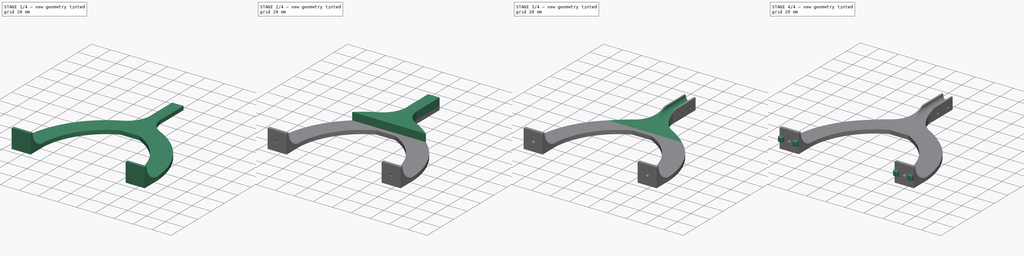
[diagram: build sequence overview — one tinted view per stage of 4, left to right]
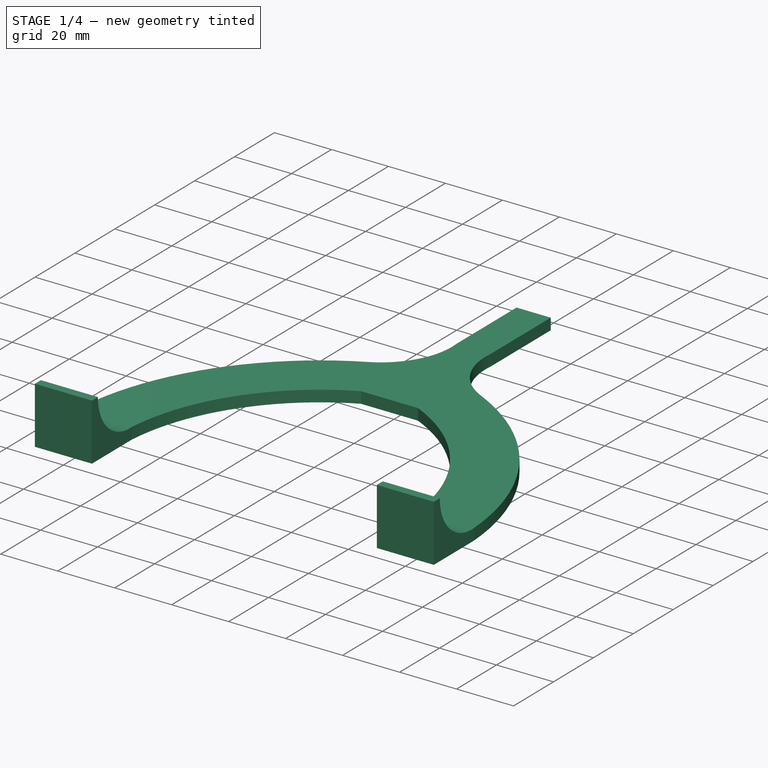
[diagram: stage 1 of 4 — iso view after this stage's code; geometry added in this stage tinted green]
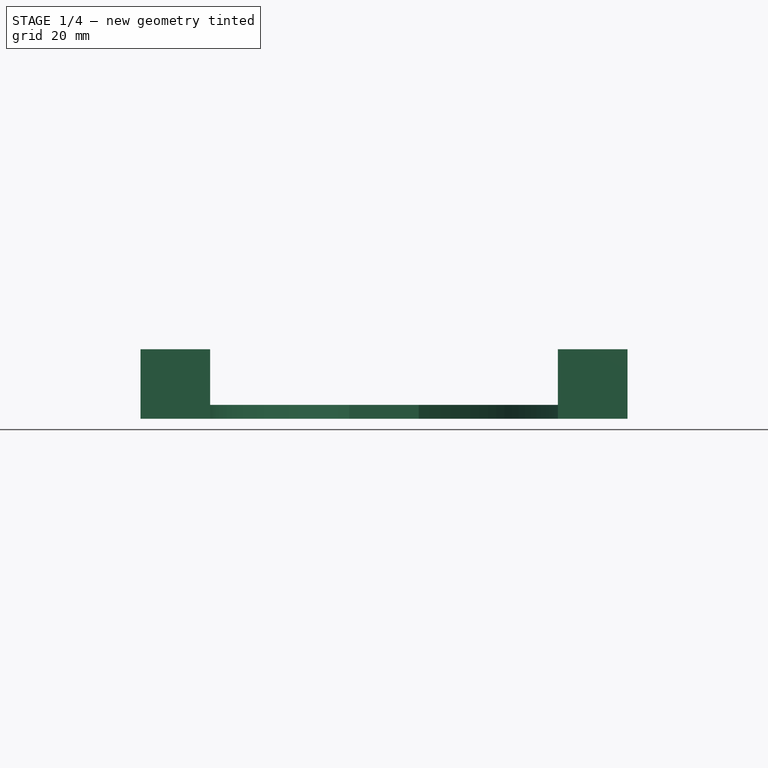
[diagram: stage 1 of 4 — front view after this stage's code; geometry added in this stage tinted green]
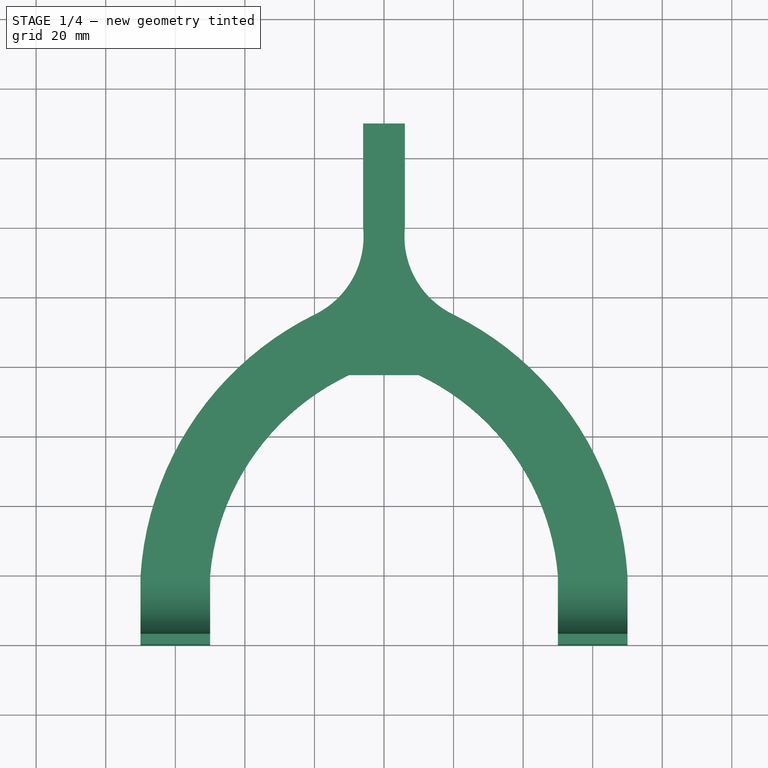
[diagram: stage 1 of 4 — top view after this stage's code; geometry added in this stage tinted green]
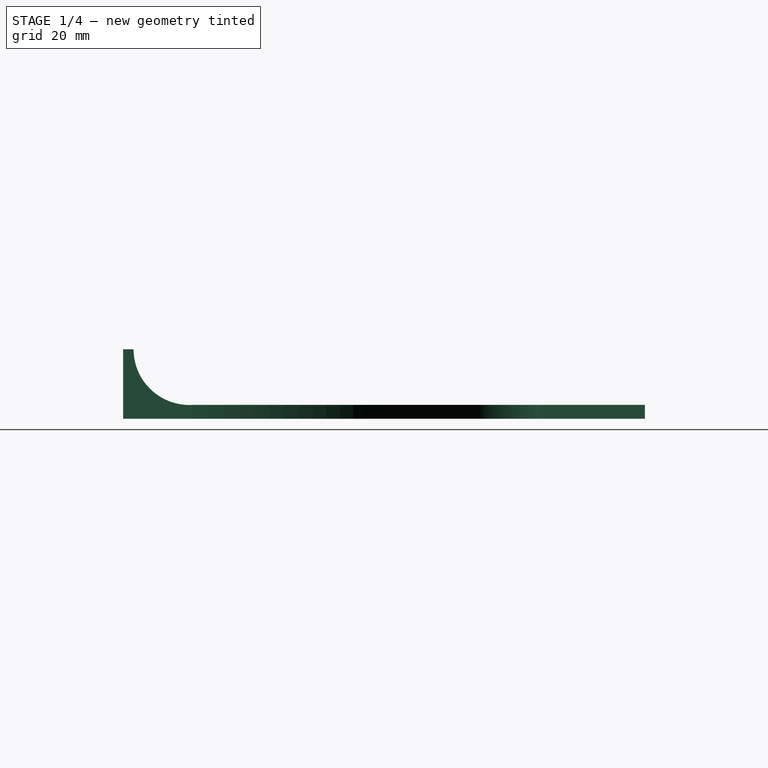
[diagram: stage 1 of 4 — right view after this stage's code; geometry added in this stage tinted green]
FCSTD DOCUMENT  (FreeCAD 0.19R24291 (Git))
Label: Umbilical Support
License: All rights reserved
LicenseURL: http://en.wikipedia.org/wiki/All_rights_reserved
objects: Sketcher::SketchObject×10, PartDesign::Pocket×6, PartDesign::Pad×4, PartDesign::Fillet×1, PartDesign::Body×1, Part::Fillet×1
note: 34 computed .brp shape members not serialized (recipe doc carries the construction recipe); baked Part::Feature solids carry a one-line shape summary decoded from their .brp

FEATURE [Sketcher::SketchObject] Sketch
  FullyConstrained = false
  MapMode = 5
  Support = -> [XY_Plane]
  sketch-geometry (17):
    g0: LineSegment StartX=-70 StartY=0 StartZ=0 EndX=-50 EndY=0 EndZ=0
    g1: LineSegment StartX=-50 StartY=0 StartZ=0 EndX=-50 EndY=20 EndZ=0
    g2: LineSegment StartX=-70 StartY=0 StartZ=0 EndX=-70 EndY=20 EndZ=0
    g3: LineSegment StartX=-6 StartY=150 StartZ=0 EndX=6 EndY=150 EndZ=0
    g4: LineSegment StartX=6 StartY=150 StartZ=0 EndX=6 EndY=120 EndZ=0
    g5: LineSegment StartX=-6 StartY=120 StartZ=0 EndX=-6 EndY=150 EndZ=0
    g6: ArcOfCircle CenterX=20 CenterY=14.2265 CenterZ=0 NormalX=0 NormalY=0 NormalZ=1 AngleXU=0 Radius=90.185 StartAngle=2.03033 EndAngle=3.07753
    g7: ArcOfCircle CenterX=-30.8122 CenterY=117.525 CenterZ=0 NormalX=0 NormalY=0 NormalZ=1 AngleXU=0 Radius=24.9353 StartAngle=5.16088 EndAngle=6.38261
    g8: ArcOfCircle CenterX=20 CenterY=14.2265 CenterZ=0 NormalX=0 NormalY=0 NormalZ=1 AngleXU=0 Radius=70.2377 StartAngle=2.0121 EndAngle=3.0593
    g9: ArcOfCircle CenterX=30.8122 CenterY=117.525 CenterZ=0 NormalX=0 NormalY=0 NormalZ=1 AngleXU=0 Radius=24.9353 StartAngle=3.04216 EndAngle=4.26389
    g10: ArcOfCircle CenterX=-20 CenterY=14.2265 CenterZ=0 NormalX=0 NormalY=0 NormalZ=1 AngleXU=0 Radius=90.185 StartAngle=0.0640622 EndAngle=1.11126
    g11: ArcOfCircle CenterX=-20 CenterY=14.2265 CenterZ=0 NormalX=0 NormalY=0 NormalZ=1 AngleXU=0 Radius=70.2377 StartAngle=0.0822923 EndAngle=1.12949
    g12: LineSegment StartX=50 StartY=20 StartZ=0 EndX=50 EndY=0 EndZ=0
    g13: LineSegment StartX=50 StartY=0 StartZ=0 EndX=70 EndY=0 EndZ=0
    g14: LineSegment StartX=70 StartY=0 StartZ=0 EndX=70 EndY=20 EndZ=0
    g15: LineSegment StartX=-10 StartY=77.735 StartZ=0 EndX=10 EndY=77.735 EndZ=0
    g16: LineSegment StartX=0 StartY=0 StartZ=0 EndX=0 EndY=162.321 EndZ=0
  constraints (52):
    c: PointOnObject(g0,g-1)
    c: PointOnObject(g0,g-1)
    c: Coincident(g0,g1)
    c: Vertical(g1)
    c: Coincident(g2,g0)
    c: Vertical(g2)
    c: Coincident(g3,g4)
    c: Coincident(g5,g3)
    c: Horizontal(g3)
    c: Vertical(g4)
    c: Vertical(g5)
    c: DistanceY(g4,g4) = 30
    c: DistanceY(g-1,g3) = 150
    c: DistanceX(g0,g0) = 20
    c: DistanceX(g0,g-1) = 50
    c: DistanceY(g2,g2) = 20
    c: Equal(g2,g1)
    c: Coincident(g6,g2)
    c: Coincident(g7,g6)
    c: Coincident(g8,g1)
    c: Coincident(g9,g4)
    c: Coincident(g10,g9)
    c: Coincident(g12,g11)
    c: PointOnObject(g12,g-1)
    c: Vertical(g12)
    c: PointOnObject(g13,g-1)
    c: Coincident(g14,g13)
    c: Coincident(g14,g10)
    c: Vertical(g14)
    c: Equal(g2,g12)
    c: Equal(g12,g14)
    c: Equal(g14,g13)
    c: Angle(g6) = 1.0472
    c: Equal(g6,g10)
    c: Coincident(g12,g13)
    c: DistanceX(g-1,g12) = 50
    c: Angle(g8) = 1.0472
    c: Equal(g8,g11)
    c: Coincident(g15,g8)
    c: Coincident(g15,g11)
    c: Coincident(g16,g-1)
    c: Symmetric(g8,g11,g16)
    c: DistanceX(g3,g3) = 12
    c: Symmetric(g3,g3,g16)
    c: Symmetric(g6,g9,g16)
    c: Equal(g7,g9)
    c: Coincident(g11,g10)
    c: DistanceX(g15,g15) = 20
    c: DistanceX(g10,g-1) = 20
    c: Angle(g9) = 1.22173
    c: Horizontal(g5,g4)
    c: Coincident(g7,g5)
FEATURE [PartDesign::Pad] Pad
  Direction = (1,1,1)
  Length = 4
  Length2 = 100
  Profile = -> Sketch
  Type = 0
FEATURE [Sketcher::SketchObject] Sketch001
  ExternalGeometry = -> [Pad]
  FullyConstrained = true
  MapMode = 5
  Placement = pos=(0,0,4) rot=(0,0,1;0rad)
  Support = -> [Pad]
  sketch-geometry (8):
    g0: LineSegment StartX=50 StartY=20 StartZ=0 EndX=70 EndY=20 EndZ=0
    g1: LineSegment StartX=70 StartY=20 StartZ=0 EndX=70 EndY=0 EndZ=0
    g2: LineSegment StartX=70 StartY=0 StartZ=0 EndX=50 EndY=0 EndZ=0
    g3: LineSegment StartX=50 StartY=0 StartZ=0 EndX=50 EndY=20 EndZ=0
    g4: LineSegment StartX=-70 StartY=20 StartZ=0 EndX=-50 EndY=20 EndZ=0
    g5: LineSegment StartX=-50 StartY=20 StartZ=0 EndX=-50 EndY=0 EndZ=0
    g6: LineSegment StartX=-50 StartY=0 StartZ=0 EndX=-70 EndY=0 EndZ=0
    g7: LineSegment StartX=-70 StartY=0 StartZ=0 EndX=-70 EndY=20 EndZ=0
  constraints (20):
    c: Coincident(g0,g1)
    c: Coincident(g1,g2)
    c: Coincident(g2,g3)
    c: Coincident(g3,g0)
    c: Horizontal(g0)
    c: Horizontal(g2)
    c: Vertical(g1)
    c: Vertical(g3)
    c: Coincident(g0,g-4)
    c: Coincident(g1,g-3)
    c: Coincident(g4,g5)
    c: Coincident(g5,g6)
    c: Coincident(g6,g7)
    c: Coincident(g7,g4)
    c: Horizontal(g4)
    c: Horizontal(g6)
    c: Vertical(g5)
    c: Vertical(g7)
    c: Coincident(g4,g-5)
    c: Coincident(g5,g-6)
FEATURE [PartDesign::Pad] Pad001
  BaseFeature = -> Pad
  Direction = (1,1,1)
  Length = 16
  Length2 = 100
  Profile = -> Sketch001
  Type = 0
FEATURE [Sketcher::SketchObject] Sketch002
  ExternalGeometry = -> [Pad001]
  FullyConstrained = true
  MapMode = 5
  Placement = pos=(70,0,0) rot=(0.57735,0.57735,0.57735;2.0944rad)
  Support = -> [Pad001]
  sketch-geometry (3):
    g0: ArcOfCircle CenterX=19.0294 CenterY=20 CenterZ=0 NormalX=0 NormalY=0 NormalZ=1 AngleXU=0 Radius=16.0294 StartAngle=3.14159 EndAngle=4.77298
    g1: LineSegment StartX=3 StartY=20 StartZ=0 EndX=20 EndY=20 EndZ=0
    g2: LineSegment StartX=20 StartY=20 StartZ=0 EndX=20 EndY=4 EndZ=0
  constraints (8):
    c: Coincident(g0,g-4)
    c: PointOnObject(g0,g-3)
    c: DistanceX(g-3,g0) = 3
    c: PointOnObject(g0,g-3)
    c: Coincident(g1,g0)
    c: Coincident(g1,g-3)
    c: Coincident(g2,g1)
    c: Coincident(g2,g0)
FEATURE [PartDesign::Pocket] Pocket
  BaseFeature = -> Pad001
  Length = 150
  Length2 = 100
  Profile = -> Sketch002
  Type = 0
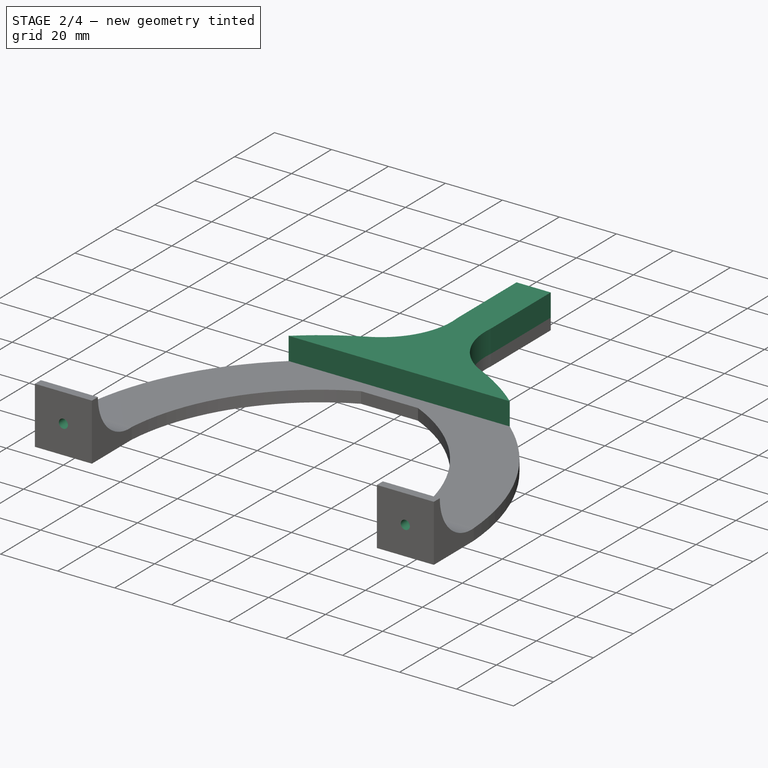
[diagram: stage 2 of 4 — iso view after this stage's code; geometry added in this stage tinted green]
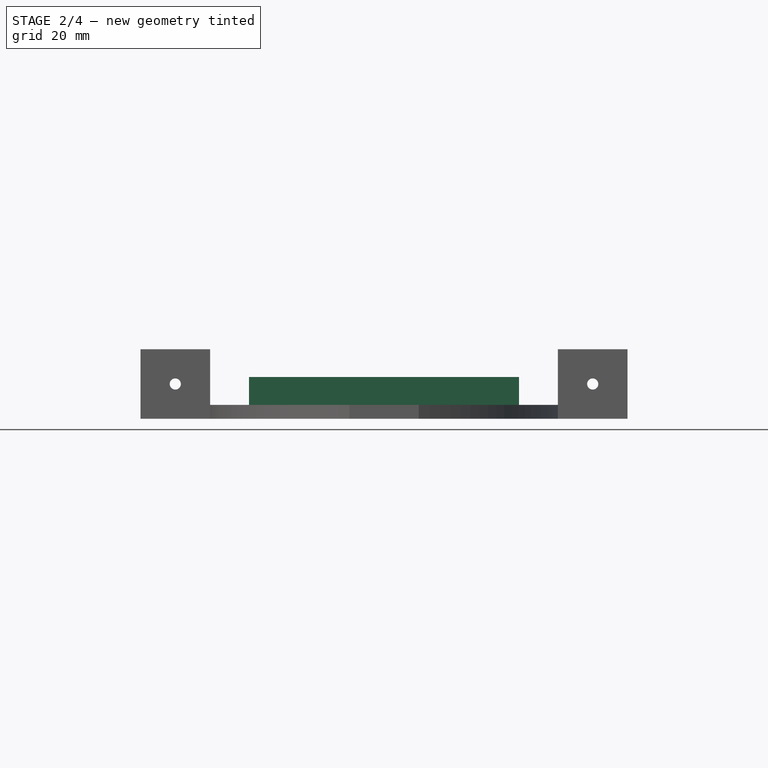
[diagram: stage 2 of 4 — front view after this stage's code; geometry added in this stage tinted green]
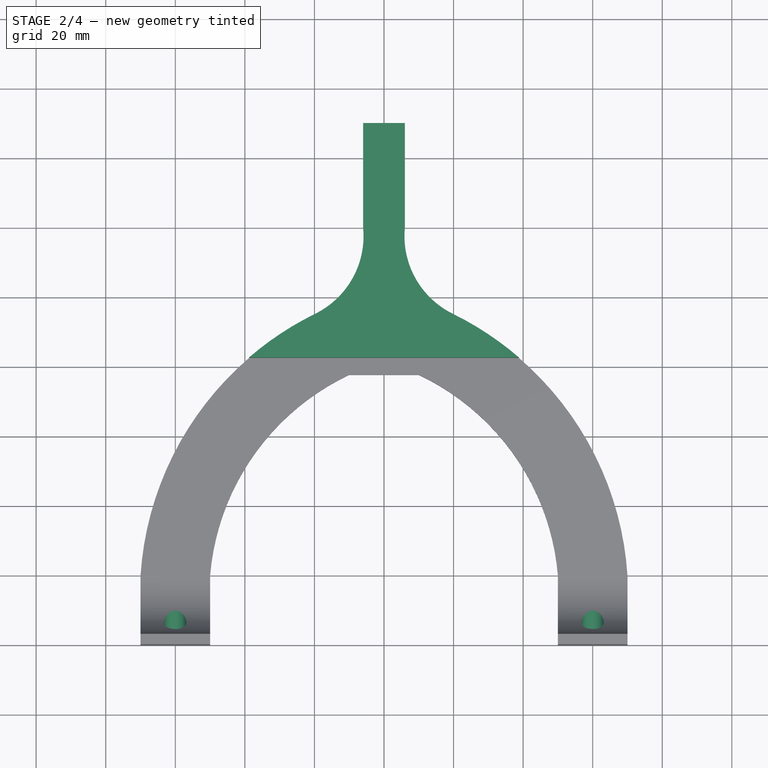
[diagram: stage 2 of 4 — top view after this stage's code; geometry added in this stage tinted green]
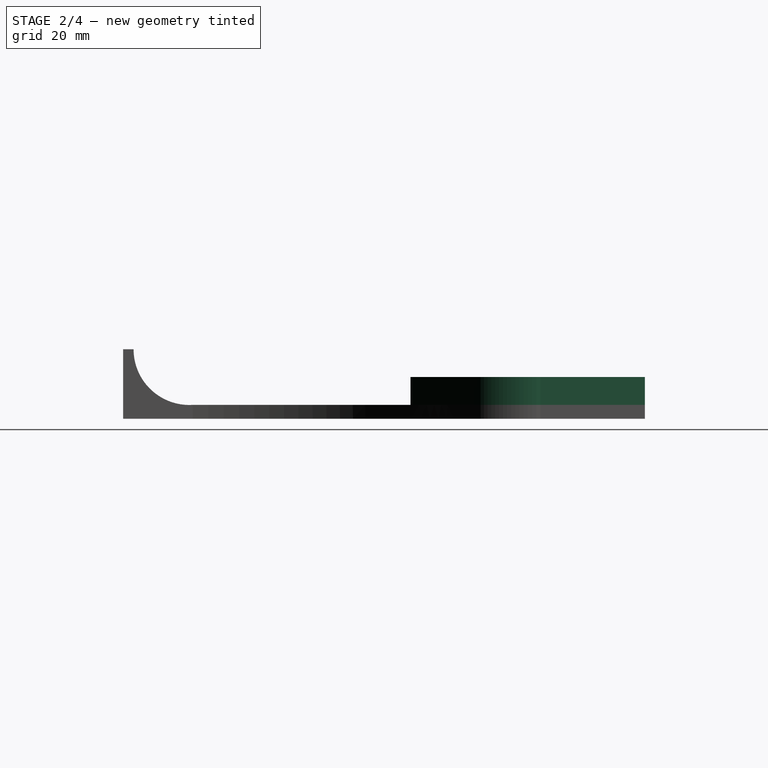
[diagram: stage 2 of 4 — right view after this stage's code; geometry added in this stage tinted green]
FEATURE [Sketcher::SketchObject] Sketch003
  ExternalGeometry = -> [Pocket]
  FullyConstrained = false
  MapMode = 5
  Placement = pos=(0,0,4) rot=(0,0,1;0rad)
  Support = -> [Pocket]
  sketch-geometry (8):
    g0: LineSegment StartX=-6 StartY=150 StartZ=0 EndX=6 EndY=150 EndZ=0
    g1: LineSegment StartX=6 StartY=150 StartZ=0 EndX=6 EndY=120 EndZ=0
    g2: LineSegment StartX=-6 StartY=150 StartZ=0 EndX=-6 EndY=120 EndZ=0
    g3: ArcOfCircle CenterX=-30.8122 CenterY=117.525 CenterZ=0 NormalX=0 NormalY=0 NormalZ=1 AngleXU=0 Radius=24.9353 StartAngle=5.16088 EndAngle=6.38261
    g4: LineSegment StartX=-38.7967 StartY=82.6099 StartZ=0 EndX=38.7967 EndY=82.6099 EndZ=0
    g5: ArcOfCircle CenterX=20 CenterY=14.2265 CenterZ=0 NormalX=0 NormalY=0 NormalZ=1 AngleXU=0 Radius=90.185 StartAngle=2.03033 EndAngle=2.28096
    g6: ArcOfCircle CenterX=30.8122 CenterY=117.525 CenterZ=0 NormalX=0 NormalY=0 NormalZ=1 AngleXU=0 Radius=24.9353 StartAngle=3.04216 EndAngle=4.26389
    g7: ArcOfCircle CenterX=-20 CenterY=14.2265 CenterZ=0 NormalX=0 NormalY=0 NormalZ=1 AngleXU=0 Radius=90.185 StartAngle=0.860635 EndAngle=1.11126
  constraints (21):
    c: Coincident(g0,g1)
    c: Horizontal(g0)
    c: Vertical(g1)
    c: Coincident(g0,g-3)
    c: Coincident(g1,g-4)
    c: Coincident(g2,g0)
    c: Coincident(g2,g-5)
    c: Coincident(g3,g2)
    c: Horizontal(g4)
    c: Coincident(g5,g4)
    c: Coincident(g5,g3)
    c: Tangent(g5,g-8)
    c: PointOnObject(g4,g-9)
    c: Tangent(g3,g-5) = -1.5708
    c: PointOnObject(g4,g-8)
    c: Coincident(g6,g1)
    c: Coincident(g6,g-9)
    c: Tangent(g6,g-6)
    c: Coincident(g7,g4)
    c: Coincident(g7,g6)
    c: Tangent(g7,g-9)
FEATURE [PartDesign::Pad] Pad002
  BaseFeature = -> Pocket
  Direction = (1,1,1)
  Length = 8
  Length2 = 100
  Profile = -> Sketch003
  Type = 0
FEATURE [Sketcher::SketchObject] Sketch007
  FullyConstrained = false
  MapMode = 5
  Placement = pos=(0,0,0) rot=(1,0,0;1.5708rad)
  sketch-geometry (2):
    g0: Circle CenterX=-60 CenterY=10 CenterZ=0 NormalX=0 NormalY=0 NormalZ=1 AngleXU=0 Radius=1.6
    g1: Circle CenterX=60 CenterY=10 CenterZ=0 NormalX=0 NormalY=0 NormalZ=1 AngleXU=0 Radius=1.6
  constraints (3):
    c: Radius(g0) = 1.6
    c: Equal(g0,g1)
    c: Horizontal(g1,g0)
FEATURE [PartDesign::Pocket] Pocket004
  BaseFeature = -> Pad002
  Length = 20
  Length2 = 100
  Profile = -> Sketch007
  Type = 0
FEATURE [Sketcher::SketchObject] Sketch008
  ExternalGeometry = -> [Pad001]
  FullyConstrained = true
  MapMode = 5
  Placement = pos=(0,20,0) rot=(0,0.707107,0.707107;3.14159rad)
  Support = -> [Pad001]
  sketch-geometry (2):
    g0: Circle CenterX=-60 CenterY=10 CenterZ=0 NormalX=0 NormalY=0 NormalZ=1 AngleXU=0 Radius=3.2
    g1: Circle CenterX=60 CenterY=10 CenterZ=0 NormalX=0 NormalY=0 NormalZ=1 AngleXU=0 Radius=3.2
  constraints (6):
    c: DistanceY(g0,g-3) = 10
    c: DistanceX(g-3,g0) = 10
    c: Horizontal(g0,g1)
    c: DistanceX(g1,g-4) = 10
    c: Radius(g0) = 3.2
    c: Equal(g0,g1)
FEATURE [PartDesign::Pocket] Pocket005
  BaseFeature = -> Pocket004
  Length = 17
  Length2 = 100
  Profile = -> Sketch008
  Type = 0
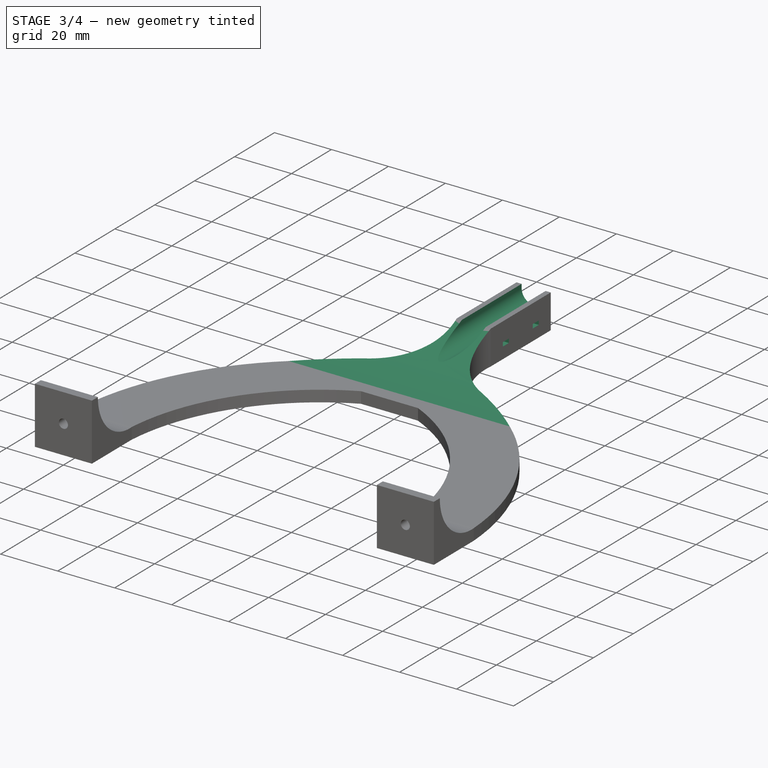
[diagram: stage 3 of 4 — iso view after this stage's code; geometry added in this stage tinted green]
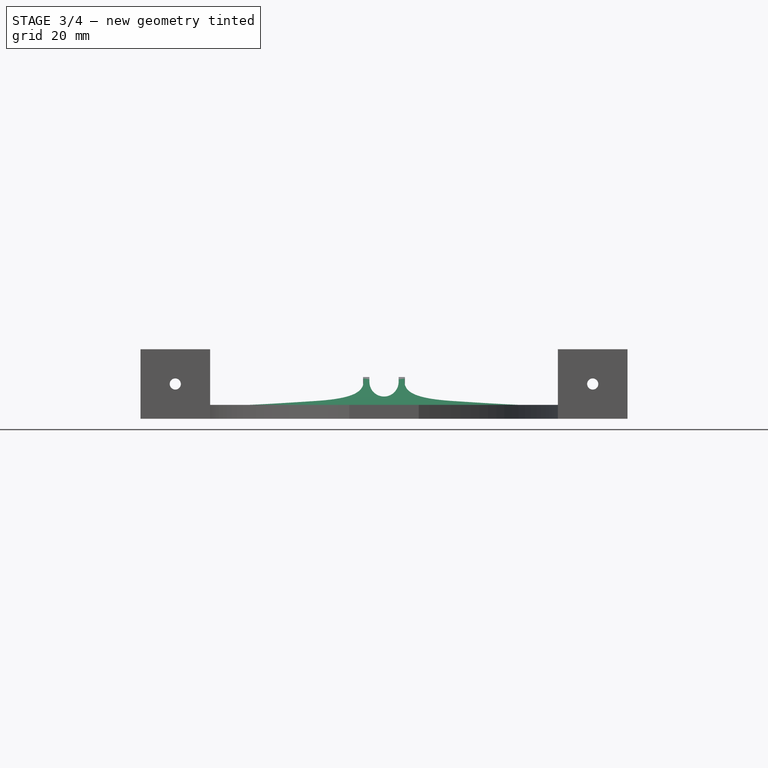
[diagram: stage 3 of 4 — front view after this stage's code; geometry added in this stage tinted green]
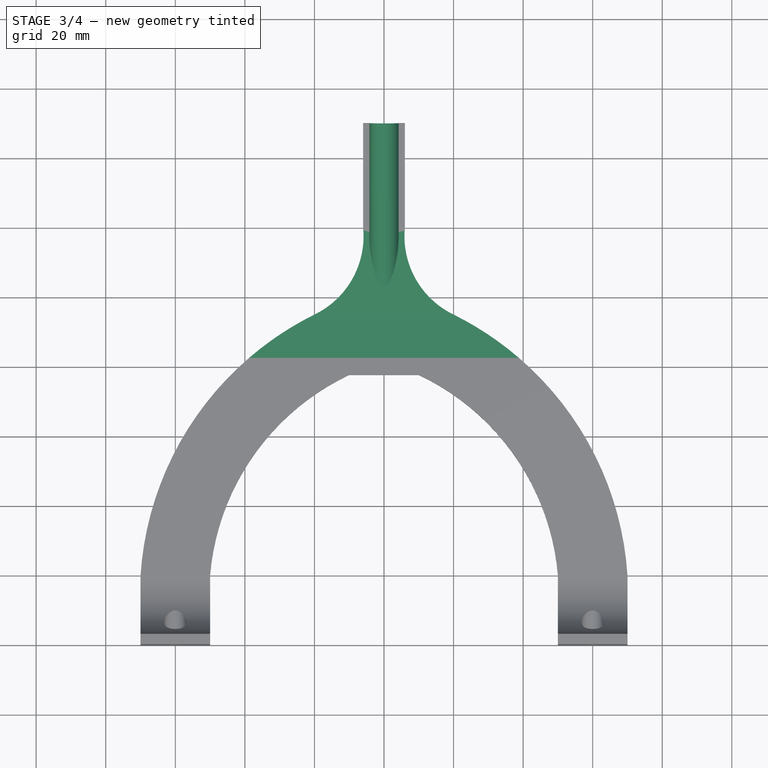
[diagram: stage 3 of 4 — top view after this stage's code; geometry added in this stage tinted green]
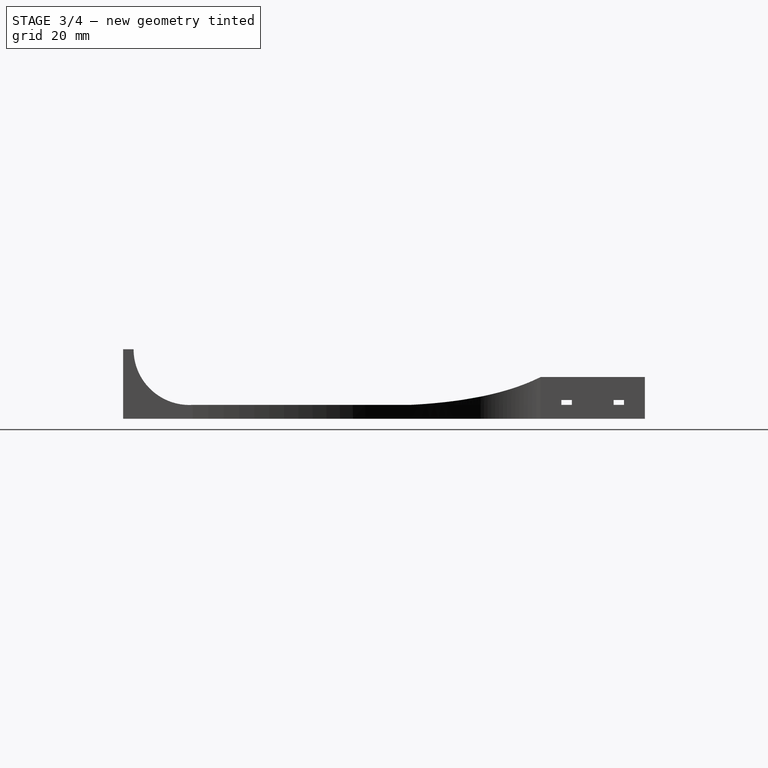
[diagram: stage 3 of 4 — right view after this stage's code; geometry added in this stage tinted green]
FEATURE [Sketcher::SketchObject] Sketch009
  ExternalGeometry = -> [Pocket005]
  FullyConstrained = false
  MapMode = 5
  Placement = pos=(6,0,0) rot=(0.57735,0.57735,0.57735;2.0944rad)
  Support = -> [Pocket005]
  sketch-geometry (8):
    g0: LineSegment StartX=82.6099 StartY=4 StartZ=0 EndX=82.6099 EndY=12 EndZ=0
    g1: LineSegment StartX=82.6099 StartY=12 StartZ=0 EndX=120 EndY=12 EndZ=0
    g2: Circle CenterX=82.6099 CenterY=4 CenterZ=0 NormalX=0 NormalY=0 NormalZ=1 AngleXU=0 Radius=1
    g3: Circle CenterX=106.505 CenterY=5.20787 CenterZ=0 NormalX=0 NormalY=0 NormalZ=1 AngleXU=0 Radius=1
    g4: Circle CenterX=120 CenterY=12 CenterZ=0 NormalX=0 NormalY=0 NormalZ=1 AngleXU=0 Radius=1
    g5: BSplineCurve PolesCount=3 KnotsCount=2 Degree=2 IsPeriodic=0
    g6: GeomPoint X=82.6099 Y=4 Z=0
    g7: GeomPoint X=120 Y=12 Z=0
  constraints (14):
    c: Coincident(g0,g-3)
    c: Coincident(g0,g-3)
    c: Coincident(g1,g-4)
    c: Coincident(g1,g0)
    c: Coincident(g5,g0)
    c: Weight(g2) = 1
    c: Equal(g2,g3)
    c: Equal(g2,g4)
    c: Coincident(g5,g1)
    c: InternalAlignment(g2,g5)
    c: InternalAlignment(g3,g5)
    c: InternalAlignment(g4,g5)
    c: InternalAlignment(g6,g5)
    c: InternalAlignment(g7,g5)
FEATURE [PartDesign::Pocket] Pocket006
  BaseFeature = -> Pocket005
  Length = 50
  Length2 = 100
  Profile = -> Sketch009
  Type = 4
FEATURE [Sketcher::SketchObject] Sketch010
  ExternalGeometry = -> [Pocket006]
  FullyConstrained = true
  MapMode = 5
  Placement = pos=(0,150,0) rot=(0,0.707107,0.707107;3.14159rad)
  Support = -> [Pocket006]
  sketch-geometry (4):
    g0: LineSegment StartX=-4.2 StartY=12 StartZ=0 EndX=-4.2 EndY=10.6 EndZ=0
    g1: LineSegment StartX=4.2 StartY=12 StartZ=0 EndX=4.2 EndY=10.6 EndZ=0
    g2: ArcOfCircle CenterX=1e-16 CenterY=10.6 CenterZ=0 NormalX=0 NormalY=0 NormalZ=1 AngleXU=0 Radius=4.2 StartAngle=3.14159 EndAngle=6.28319
    g3: LineSegment StartX=-4.2 StartY=12 StartZ=0 EndX=4.2 EndY=12 EndZ=0
  constraints (12):
    c: PointOnObject(g0,g-3)
    c: Vertical(g0)
    c: Vertical(g1)
    c: DistanceY(g0,g0) = 1.4
    c: Equal(g0,g1)
    c: Coincident(g2,g0)
    c: Coincident(g2,g1)
    c: Angle(g2) = 3.14159
    c: Coincident(g3,g0)
    c: Coincident(g3,g1)
    c: Symmetric(g0,g1,g-2)
    c: DistanceX(g0,g1) = 8.4
FEATURE [PartDesign::Pocket] Pocket007
  BaseFeature = -> Pocket006
  Length = 55
  Length2 = 100
  Profile = -> Sketch010
  Type = 0
FEATURE [Sketcher::SketchObject] Sketch011
  ExternalGeometry = -> [Pocket007]
  FullyConstrained = true
  MapMode = 5
  Placement = pos=(6,0,0) rot=(0.57735,0.57735,0.57735;2.0944rad)
  Support = -> [Pocket007]
  sketch-geometry (8):
    g0: LineSegment StartX=126 StartY=5.4 StartZ=0 EndX=129 EndY=5.4 EndZ=0
    g1: LineSegment StartX=129 StartY=5.4 StartZ=0 EndX=129 EndY=4 EndZ=0
    g2: LineSegment StartX=129 StartY=4 StartZ=0 EndX=126 EndY=4 EndZ=0
    g3: LineSegment StartX=126 StartY=4 StartZ=0 EndX=126 EndY=5.4 EndZ=0
    g4: LineSegment StartX=141 StartY=5.4 StartZ=0 EndX=144 EndY=5.4 EndZ=0
    g5: LineSegment StartX=144 StartY=5.4 StartZ=0 EndX=144 EndY=4 EndZ=0
    g6: LineSegment StartX=144 StartY=4 StartZ=0 EndX=141 EndY=4 EndZ=0
    g7: LineSegment StartX=141 StartY=4 StartZ=0 EndX=141 EndY=5.4 EndZ=0
  constraints (24):
    c: Coincident(g0,g1)
    c: Coincident(g1,g2)
    c: Coincident(g2,g3)
    c: Coincident(g3,g0)
    c: Horizontal(g0)
    c: Horizontal(g2)
    c: Vertical(g1)
    c: Vertical(g3)
    c: Coincident(g4,g5)
    c: Coincident(g5,g6)
    c: Coincident(g6,g7)
    c: Coincident(g7,g4)
    c: Horizontal(g4)
    c: Horizontal(g6)
    c: Vertical(g5)
    c: Vertical(g7)
    c: Horizontal(g1,g6)
    c: DistanceY(g3,g3) = 1.4
    c: Equal(g3,g7)
    c: DistanceX(g0,g0) = 3
    c: Equal(g0,g4)
    c: PointOnObject(g2,g-3)
    c: DistanceX(g-3,g2) = 6
    c: DistanceX(g5,g-3) = 6
FEATURE [PartDesign::Pocket] Pocket008
  BaseFeature = -> Pocket007
  Length = 25
  Length2 = 100
  Profile = -> Sketch011
  Type = 0
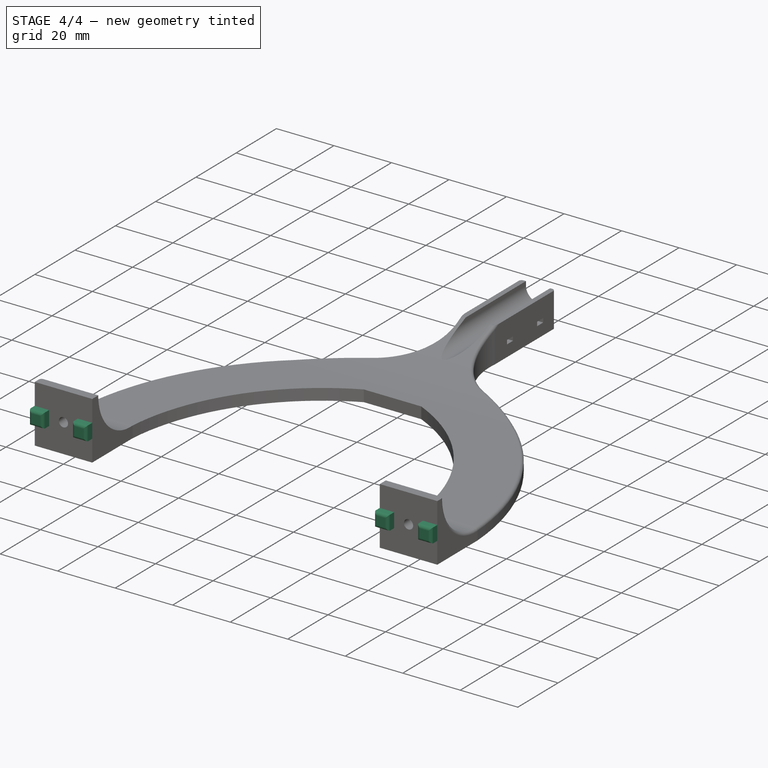
[diagram: stage 4 of 4 — iso view after this stage's code; geometry added in this stage tinted green]
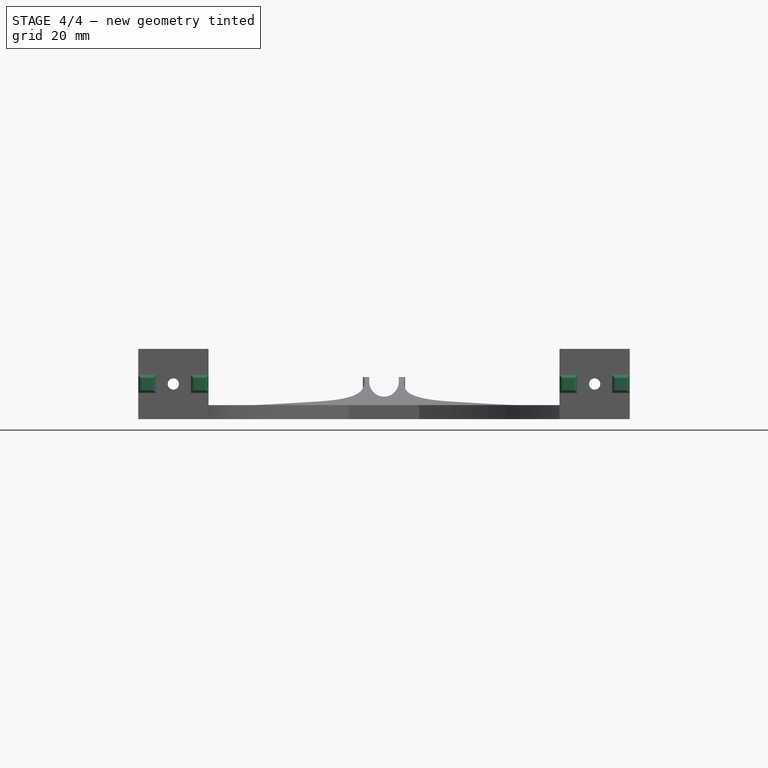
[diagram: stage 4 of 4 — front view after this stage's code; geometry added in this stage tinted green]
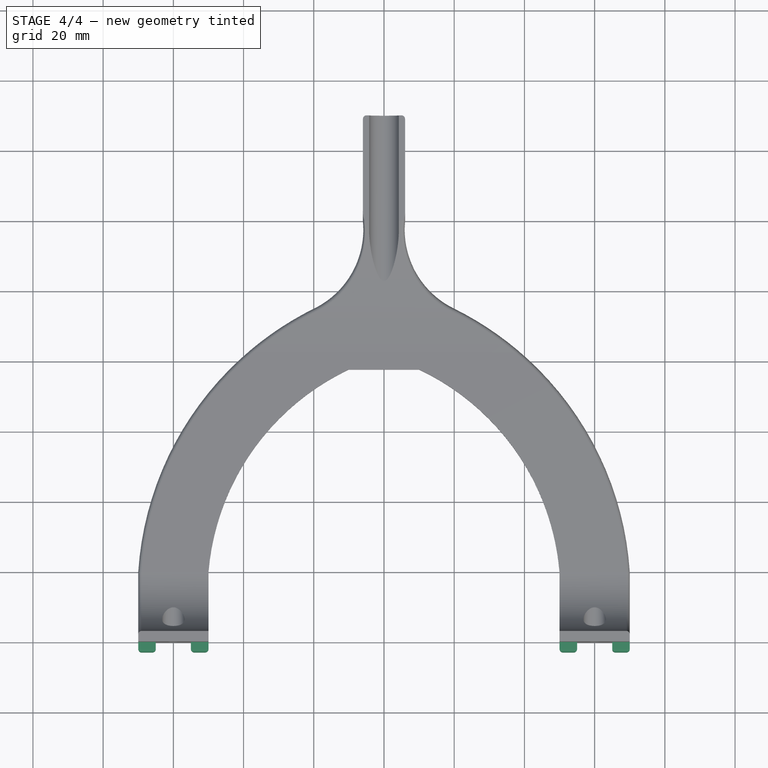
[diagram: stage 4 of 4 — top view after this stage's code; geometry added in this stage tinted green]
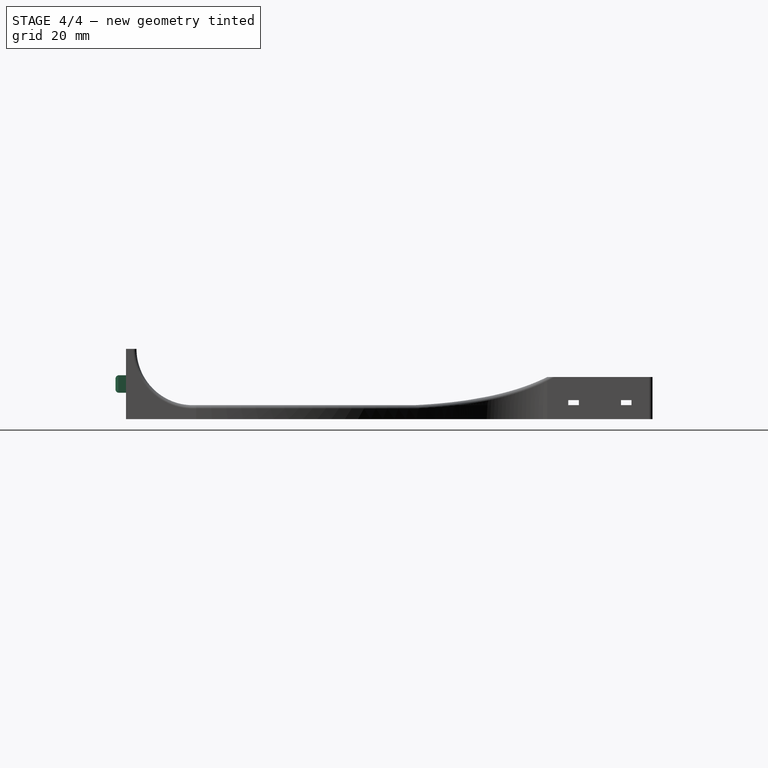
[diagram: stage 4 of 4 — right view after this stage's code; geometry added in this stage tinted green]
FEATURE [Sketcher::SketchObject] Sketch012
  ExternalGeometry = -> [Pocket008]
  FullyConstrained = false
  MapMode = 5
  Placement = pos=(0,0,0) rot=(1,0,0;1.5708rad)
  Support = -> [Pocket008]
  sketch-geometry (17):
    g0: LineSegment StartX=-70 StartY=12.5 StartZ=0 EndX=-65 EndY=12.5 EndZ=0
    g1: LineSegment StartX=-65 StartY=12.5 StartZ=0 EndX=-65 EndY=7.5 EndZ=0
    g2: LineSegment StartX=-65 StartY=7.5 StartZ=0 EndX=-70 EndY=7.5 EndZ=0
    g3: LineSegment StartX=-70 StartY=7.5 StartZ=0 EndX=-70 EndY=12.5 EndZ=0
    g4: LineSegment StartX=-50 StartY=12.5 StartZ=0 EndX=-55 EndY=12.5 EndZ=0
    g5: LineSegment StartX=-55 StartY=12.5 StartZ=0 EndX=-55 EndY=7.5 EndZ=0
    g6: LineSegment StartX=-55 StartY=7.5 StartZ=0 EndX=-50 EndY=7.5 EndZ=0
    g7: LineSegment StartX=-50 StartY=7.5 StartZ=0 EndX=-50 EndY=12.5 EndZ=0
    g8: LineSegment StartX=50 StartY=12.5 StartZ=0 EndX=55 EndY=12.5 EndZ=0
    g9: LineSegment StartX=55 StartY=12.5 StartZ=0 EndX=55 EndY=7.5 EndZ=0
    g10: LineSegment StartX=55 StartY=7.5 StartZ=0 EndX=50 EndY=7.5 EndZ=0
    g11: LineSegment StartX=50 StartY=7.5 StartZ=0 EndX=50 EndY=12.5 EndZ=0
    g12: LineSegment StartX=70 StartY=12.5 StartZ=0 EndX=65 EndY=12.5 EndZ=0
    g13: LineSegment StartX=65 StartY=12.5 StartZ=0 EndX=65 EndY=7.5 EndZ=0
    g14: LineSegment StartX=65 StartY=7.5 StartZ=0 EndX=70 EndY=7.5 EndZ=0
    g15: LineSegment StartX=70 StartY=7.5 StartZ=0 EndX=70 EndY=12.5 EndZ=0
    g16: LineSegment StartX=-60 StartY=10 StartZ=0 EndX=-85.8439 EndY=10 EndZ=0
  constraints (49):
    c: Coincident(g0,g1)
    c: Coincident(g1,g2)
    c: Coincident(g2,g3)
    c: Coincident(g3,g0)
    c: Horizontal(g0)
    c: Horizontal(g2)
    c: Vertical(g1)
    c: Vertical(g3)
    c: PointOnObject(g0,g-6)
    c: Coincident(g4,g5)
    c: Coincident(g5,g6)
    c: Coincident(g6,g7)
    c: Coincident(g7,g4)
    c: Horizontal(g4)
    c: Horizontal(g6)
    c: Vertical(g5)
    c: Vertical(g7)
    c: PointOnObject(g4,g-7)
    c: Coincident(g8,g9)
    c: Coincident(g9,g10)
    c: Coincident(g10,g11)
    c: Coincident(g11,g8)
    c: Horizontal(g8)
    c: Horizontal(g10)
    c: Vertical(g9)
    c: Vertical(g11)
    c: PointOnObject(g8,g-4)
    c: Coincident(g12,g13)
    c: Coincident(g13,g14)
    c: Coincident(g14,g15)
    c: Coincident(g15,g12)
    c: Horizontal(g12)
    c: Horizontal(g14)
    c: Vertical(g13)
    c: Vertical(g15)
    c: PointOnObject(g12,g-5)
    c: DistanceY(g3,g3) = 5
    c: Equal(g3,g0)
    c: Equal(g0,g5)
    c: Equal(g5,g4)
    c: Equal(g4,g11)
    c: Equal(g11,g8)
    c: Equal(g8,g13)
    c: Equal(g13,g12)
    c: Horizontal(g2,g5)
    c: Horizontal(g5,g10)
    c: Horizontal(g10,g13)
    c: Coincident(g16,g-3)
    c: Symmetric(g0,g1,g16)
FEATURE [PartDesign::Pad] Pad003
  BaseFeature = -> Pocket008
  Direction = (1,1,1)
  Length = 3
  Length2 = 100
  Profile = -> Sketch012
  Type = 0
FEATURE [PartDesign::Fillet] Fillet
  Base = -> Pad003 [Face62,Face73,Face74,Face75]
  BaseFeature = -> Pad003
  Radius = 1
  SupportTransform = false
FEATURE [PartDesign::Body] Body
  Group = -> [Sketch,Pad,Sketch001,Pad001,Sketch002,Pocket,Sketch003,Pad002,Sketch007,Pocket004,Sketch008,Pocket005,Sketch009,Pocket006,Sketch010,Pocket007,Sketch011,Pocket008,Sketch012,Pad003,Fillet]
  Origin = -> Origin
  Tip = -> Fillet
FEATURE [Part::Fillet] Fillet001
  Base = -> Fillet
  Edges = 4 edges r=1: [Edge73,Edge76,Edge162,Edge172]
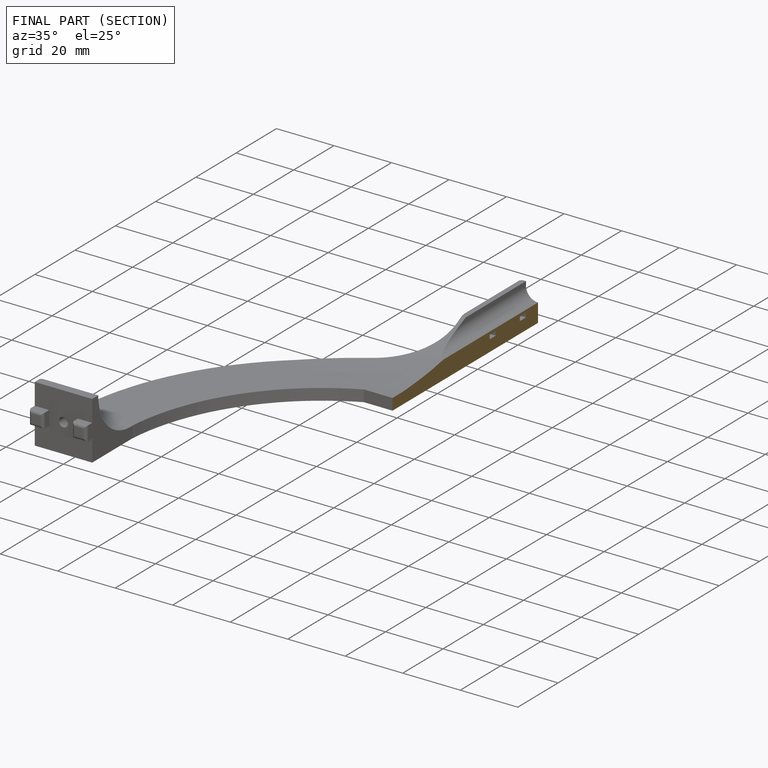
[diagram: finished part — half-section view (interior)]
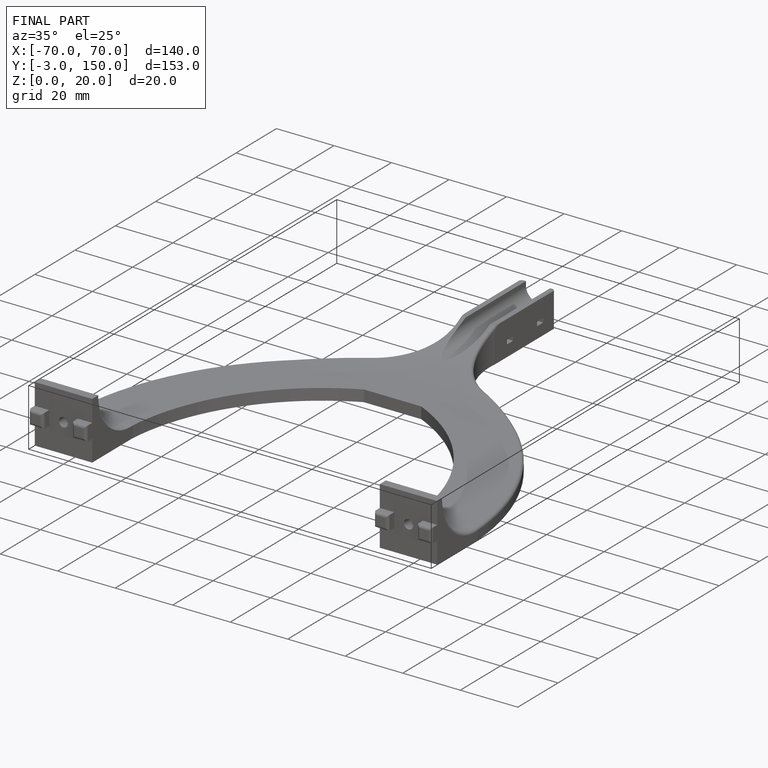
[diagram: finished part — iso view with bounding-box wireframe]
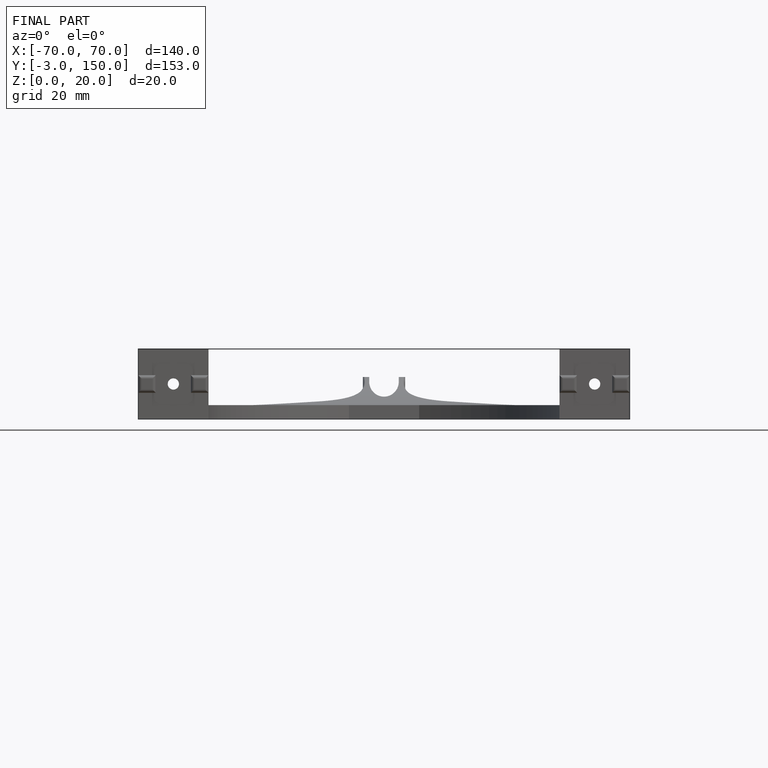
[diagram: finished part — front view with bounding-box wireframe]
